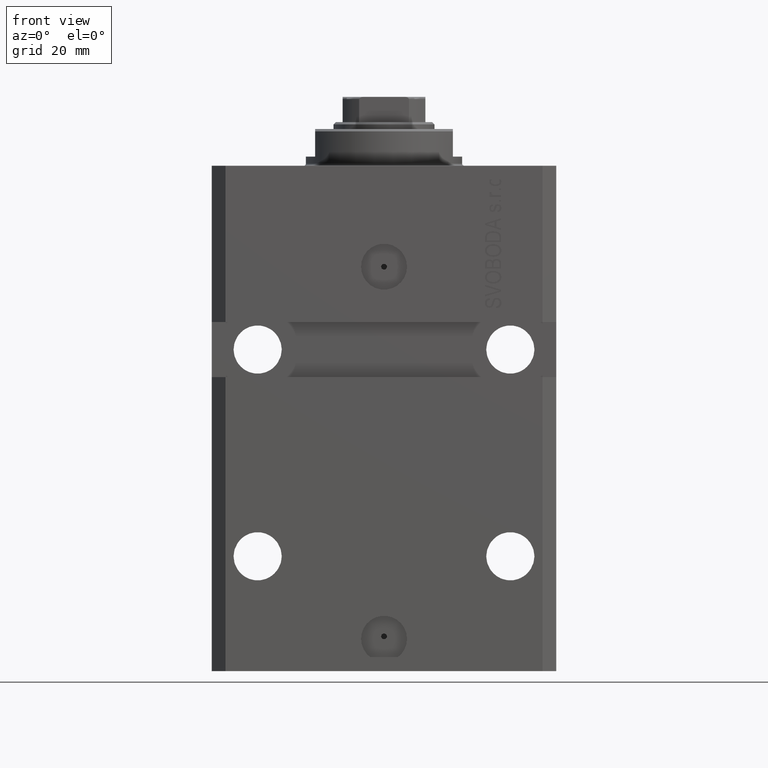
[diagram: clean part render]
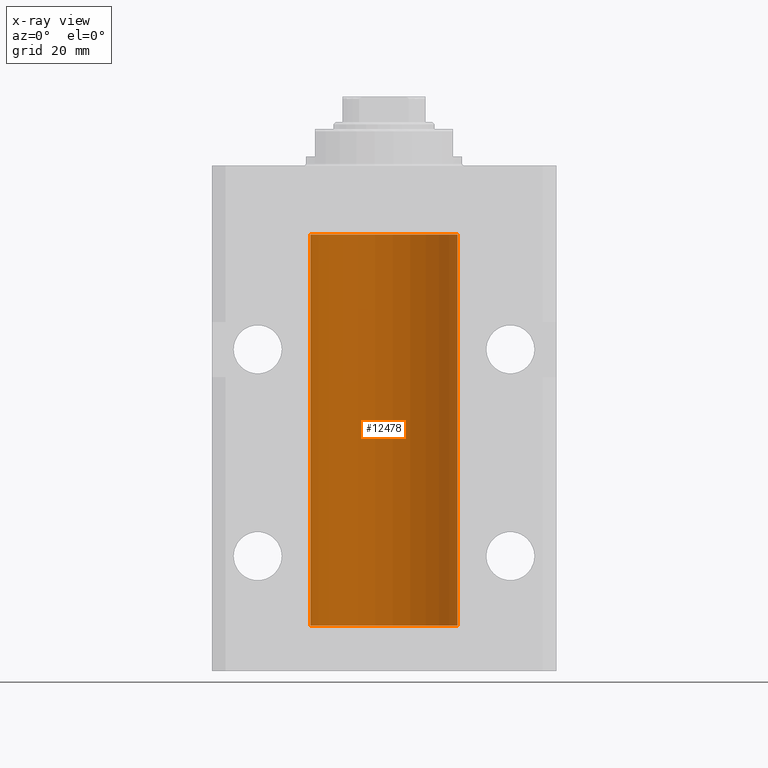
[diagram: x-ray — body ghosted, one internal face saturated and labeled with its STEP entity id]
A machine part, front view, then the same camera in x-ray: the body is ghosted and one INTERNAL B-rep face — a face not visible from any outside direction — is saturated and labeled: STEP entity #12478.
In plain terms, the highlighted cylindrical surface (partial cylindrical patch) has radius 16 mm, axis along (0, 0, 1).
Its self-contained STEP definition (entity closure, byte-faithful):
#104 = EDGE_LOOP ( 'NONE', ( #41838, #1713, #2240, #18341, #43162, #25979, #4122, #1234 ) ) ;
#403 = CARTESIAN_POINT ( 'NONE',  ( -16.00000000000013145, 3.685127046438747128E-13, -98.62500000000343903 ) ) ;
#464 = CARTESIAN_POINT ( 'NONE',  ( 16.00000000000000000, 0.000000000000000000, -100.0999999999999943 ) ) ;
#892 = EDGE_CURVE ( 'NONE', #23887, #22851, #34483, .T. ) ;
#1234 = ORIENTED_EDGE ( 'NONE', *, *, #31014, .T. ) ;
#1344 = B_SPLINE_CURVE_WITH_KNOTS ( 'NONE', 3,
 ( #18599, #19063, #15006, #7837, #8064, #44674, #19530, #15249, #11650, #8305, #4691, #37275, #11886, #403 ),
 .UNSPECIFIED., .F., .F.,
 ( 4, 2, 2, 2, 2, 2, 4 ),
 ( 1.003919637555167698E-18, 0.0002442776652680894158, 0.0004885553305361776391, 0.0009771106610723541940, 0.001221388326340463017, 0.001465665991608572274, 0.001954221322144760863 ),
 .UNSPECIFIED. ) ;
#1645 = AXIS2_PLACEMENT_3D ( 'NONE', #1792, #16398, #4899 ) ;
#1713 = ORIENTED_EDGE ( 'NONE', *, *, #34288, .F. ) ;
#1792 = CARTESIAN_POINT ( 'NONE',  ( 0.000000000000000000, 0.000000000000000000, -100.0999999999999943 ) ) ;
#2240 = ORIENTED_EDGE ( 'NONE', *, *, #892, .T. ) ;
#2502 = CARTESIAN_POINT ( 'NONE',  ( 0.000000000000000000, 0.000000000000000000, -15.00000000000000000 ) ) ;
#2947 = CARTESIAN_POINT ( 'NONE',  ( -15.99548640841683067, 0.3843705577988847377, -21.50046628527008608 ) ) ;
#3238 = VERTEX_POINT ( 'NONE', #44275 ) ;
#4122 = ORIENTED_EDGE ( 'NONE', *, *, #19811, .F. ) ;
#4691 = CARTESIAN_POINT ( 'NONE',  ( -15.99228023727724057, 0.5003781296993360383, -98.38347829554236057 ) ) ;
#4899 = DIRECTION ( 'NONE',  ( 1.000000000000000000, 0.000000000000000000, 0.000000000000000000 ) ) ;
#5509 = CARTESIAN_POINT ( 'NONE',  ( 0.000000000000000000, 0.000000000000000000, -100.0999999999999943 ) ) ;
#5678 = CARTESIAN_POINT ( 'NONE',  ( -16.00000000000000000, 1.959434878635765131E-15, -100.0999999999999943 ) ) ;
#7020 = CARTESIAN_POINT ( 'NONE',  ( -15.99934216141748244, 0.1636497843296417787, -21.39126528029306229 ) ) ;
#7837 = CARTESIAN_POINT ( 'NONE',  ( -15.99707730059171240, 0.3150375992092294686, -97.45402333202572720 ) ) ;
#8064 = CARTESIAN_POINT ( 'NONE',  ( -15.99548640841682712, 0.3843705577988784650, -97.50046628527007897 ) ) ;
#8160 = DIRECTION ( 'NONE',  ( 0.000000000000000000, 0.000000000000000000, 1.000000000000000000 ) ) ;
#8305 = CARTESIAN_POINT ( 'NONE',  ( -15.99070426498503572, 0.5462220647145610286, -98.31460064614144301 ) ) ;
#10628 = VERTEX_POINT ( 'NONE', #16099 ) ;
#10636 = DIRECTION ( 'NONE',  ( 0.000000000000000000, 0.000000000000000000, 1.000000000000000000 ) ) ;
#11650 = CARTESIAN_POINT ( 'NONE',  ( -15.98844267028590949, 0.6088369347963275002, -98.16324735024325321 ) ) ;
#11886 = CARTESIAN_POINT ( 'NONE',  ( -15.99999999999998934, 0.1631714642025804407, -98.62499999999987210 ) ) ;
#12478 = ADVANCED_FACE ( 'NONE', ( #27175 ), #20230, .F. ) ;
#14427 = CARTESIAN_POINT ( 'NONE',  ( -16.00000000000000000, 0.1631714642025800244, -22.62499999999985789 ) ) ;
#15006 = CARTESIAN_POINT ( 'NONE',  ( -15.99934216141748244, 0.1636497843296308152, -97.39126528029306940 ) ) ;
#15008 = EDGE_CURVE ( 'NONE', #32270, #40677, #20057, .T. ) ;
#15249 = CARTESIAN_POINT ( 'NONE',  ( -15.98778717651346604, 0.6250289588122097673, -98.08131585687051768 ) ) ;
#16099 = CARTESIAN_POINT ( 'NONE',  ( -16.00000000000000000, -1.303459030566954747E-14, -97.37500000000000000 ) ) ;
#16398 = DIRECTION ( 'NONE',  ( -0.000000000000000000, -0.000000000000000000, 1.000000000000000000 ) ) ;
#16841 = EDGE_CURVE ( 'NONE', #38779, #37319, #35032, .T. ) ;
#17564 = CARTESIAN_POINT ( 'NONE',  ( -15.99228023727724413, 0.5003781296993413674, -22.38347829554236057 ) ) ;
#17939 = CARTESIAN_POINT ( 'NONE',  ( -16.00000000000000000, 1.643679961284177128E-16, -21.37499999999999645 ) ) ;
#18009 = LINE ( 'NONE', #29028, #39406 ) ;
#18019 = CARTESIAN_POINT ( 'NONE',  ( -16.00000000000013145, 3.685127038166941002E-13, -22.62500000000341771 ) ) ;
#18341 = ORIENTED_EDGE ( 'NONE', *, *, #44611, .T. ) ;
#18540 = B_SPLINE_CURVE_WITH_KNOTS ( 'NONE', 3,
 ( #32871, #21851, #7020, #32401, #2947, #24984, #40296, #43643, #36462, #36222, #17564, #32170, #14427, #18019 ),
 .UNSPECIFIED., .F., .F.,
 ( 4, 2, 2, 2, 2, 2, 4 ),
 ( 1.597328219370744179E-19, 0.0002442776652680942405, 0.0004885553305361882643, 0.0009771106610723839011, 0.001221388326340481665, 0.001465665991608579430, 0.001954221322144767369 ),
 .UNSPECIFIED. ) ;
#18599 = CARTESIAN_POINT ( 'NONE',  ( -16.00000000000000000, -1.303459030566954747E-14, -97.37500000000000000 ) ) ;
#19063 = CARTESIAN_POINT ( 'NONE',  ( -16.00000000000000711, 0.08259886010188650929, -97.37500000000000000 ) ) ;
#19077 = AXIS2_PLACEMENT_3D ( 'NONE', #5509, #8160, #20111 ) ;
#19530 = CARTESIAN_POINT ( 'NONE',  ( -15.98779057735153941, 0.6249419637998017141, -97.83670145863504786 ) ) ;
#19811 = EDGE_CURVE ( 'NONE', #10628, #3238, #18009, .T. ) ;
#20006 = CARTESIAN_POINT ( 'NONE',  ( 16.00000000000000000, 0.000000000000000000, -15.00000000000000000 ) ) ;
#20057 = LINE ( 'NONE', #5678, #33864 ) ;
#20111 = DIRECTION ( 'NONE',  ( 1.000000000000000000, 0.000000000000000000, 0.000000000000000000 ) ) ;
#20230 = CYLINDRICAL_SURFACE ( 'NONE', #1645, 16.00000000000000000 ) ;
#21851 = CARTESIAN_POINT ( 'NONE',  ( -16.00000000000000711, 0.08259886010189904093, -21.37500000000000000 ) ) ;
#22851 = VERTEX_POINT ( 'NONE', #20006 ) ;
#23160 = CARTESIAN_POINT ( 'NONE',  ( -16.00000000000000000, 1.959434878635765131E-15, -15.00000000000000000 ) ) ;
#23441 = AXIS2_PLACEMENT_3D ( 'NONE', #2502, #10636, #25245 ) ;
#23464 = CARTESIAN_POINT ( 'NONE',  ( 16.00000000000000000, 0.000000000000000000, -100.0999999999999943 ) ) ;
#23589 = CARTESIAN_POINT ( 'NONE',  ( -16.00000000000013145, 3.685127046438747128E-13, -98.62500000000343903 ) ) ;
#23887 = VERTEX_POINT ( 'NONE', #464 ) ;
#24984 = CARTESIAN_POINT ( 'NONE',  ( -15.99070653155267685, 0.5573233280232986475, -21.67348148680506625 ) ) ;
#25245 = DIRECTION ( 'NONE',  ( 1.000000000000000000, 0.000000000000000000, 0.000000000000000000 ) ) ;
#25979 = ORIENTED_EDGE ( 'NONE', *, *, #40081, .T. ) ;
#26992 = DIRECTION ( 'NONE',  ( -0.000000000000000000, -0.000000000000000000, 1.000000000000000000 ) ) ;
#27175 = FACE_OUTER_BOUND ( 'NONE', #104, .T. ) ;
#27836 = DIRECTION ( 'NONE',  ( -0.000000000000000000, -0.000000000000000000, 1.000000000000000000 ) ) ;
#29028 = CARTESIAN_POINT ( 'NONE',  ( -16.00000000000000000, 1.959434878635765131E-15, -100.0999999999999943 ) ) ;
#30891 = DIRECTION ( 'NONE',  ( -0.000000000000000000, -0.000000000000000000, 1.000000000000000000 ) ) ;
#31014 = EDGE_CURVE ( 'NONE', #10628, #40677, #1344, .T. ) ;
#32170 = CARTESIAN_POINT ( 'NONE',  ( -15.99711699979842017, 0.3253759916140657737, -22.55856151623175521 ) ) ;
#32270 = VERTEX_POINT ( 'NONE', #46880 ) ;
#32401 = CARTESIAN_POINT ( 'NONE',  ( -15.99707730059171240, 0.3150375992092407373, -21.45402333202571654 ) ) ;
#32871 = CARTESIAN_POINT ( 'NONE',  ( -16.00000000000000000, 1.643679961284177128E-16, -21.37499999999999645 ) ) ;
#33864 = VECTOR ( 'NONE', #26992, 1000.000000000000000 ) ;
#34288 = EDGE_CURVE ( 'NONE', #23887, #32270, #37449, .T. ) ;
#34483 = LINE ( 'NONE', #23464, #46462 ) ;
#35032 = LINE ( 'NONE', #46032, #40761 ) ;
#36222 = CARTESIAN_POINT ( 'NONE',  ( -15.99070426498503217, 0.5462220647145618058, -22.31460064614143590 ) ) ;
#36462 = CARTESIAN_POINT ( 'NONE',  ( -15.98844267028591482, 0.6088369347963316081, -22.16324735024328518 ) ) ;
#37275 = CARTESIAN_POINT ( 'NONE',  ( -15.99711699979841661, 0.3253759916140614439, -98.55856151623174810 ) ) ;
#37319 = VERTEX_POINT ( 'NONE', #23160 ) ;
#37449 = CIRCLE ( 'NONE', #19077, 16.00000000000000000 ) ;
#38779 = VERTEX_POINT ( 'NONE', #17939 ) ;
#39406 = VECTOR ( 'NONE', #43631, 1000.000000000000000 ) ;
#40081 = EDGE_CURVE ( 'NONE', #38779, #3238, #18540, .T. ) ;
#40296 = CARTESIAN_POINT ( 'NONE',  ( -15.98779057735153941, 0.6249419637998100407, -21.83670145863507273 ) ) ;
#40677 = VERTEX_POINT ( 'NONE', #23589 ) ;
#40761 = VECTOR ( 'NONE', #27836, 1000.000000000000000 ) ;
#41838 = ORIENTED_EDGE ( 'NONE', *, *, #15008, .F. ) ;
#43162 = ORIENTED_EDGE ( 'NONE', *, *, #16841, .F. ) ;
#43631 = DIRECTION ( 'NONE',  ( -0.000000000000000000, -0.000000000000000000, 1.000000000000000000 ) ) ;
#43643 = CARTESIAN_POINT ( 'NONE',  ( -15.98778717651346071, 0.6250289588122140971, -22.08131585687052478 ) ) ;
#44087 = CIRCLE ( 'NONE', #23441, 16.00000000000000000 ) ;
#44275 = CARTESIAN_POINT ( 'NONE',  ( -16.00000000000013145, 3.685127038166941002E-13, -22.62500000000341771 ) ) ;
#44611 = EDGE_CURVE ( 'NONE', #22851, #37319, #44087, .T. ) ;
#44674 = CARTESIAN_POINT ( 'NONE',  ( -15.99070653155267685, 0.5573233280232928744, -97.67348148680505915 ) ) ;
#46032 = CARTESIAN_POINT ( 'NONE',  ( -16.00000000000000000, 1.959434878635765131E-15, -100.0999999999999943 ) ) ;
#46462 = VECTOR ( 'NONE', #30891, 1000.000000000000000 ) ;
#46880 = CARTESIAN_POINT ( 'NONE',  ( -16.00000000000000000, 1.959434878635765131E-15, -100.0999999999999943 ) ) ;